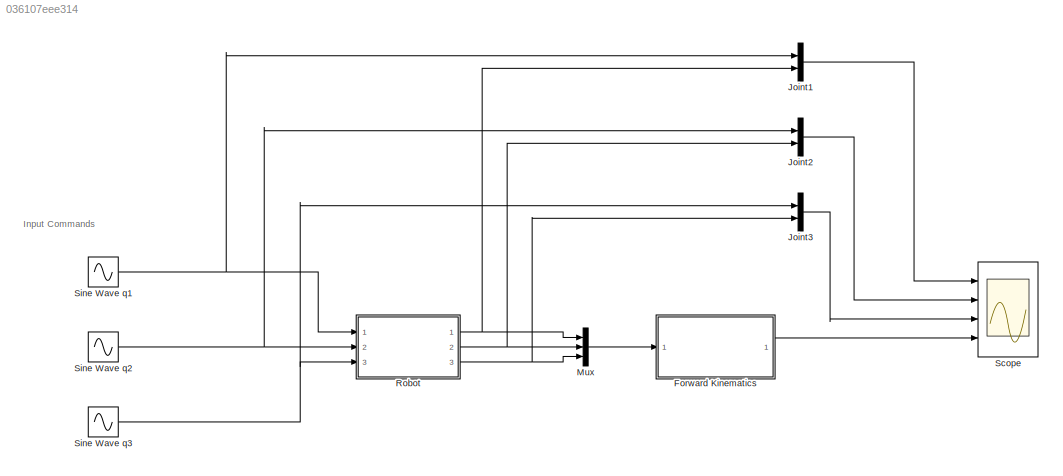
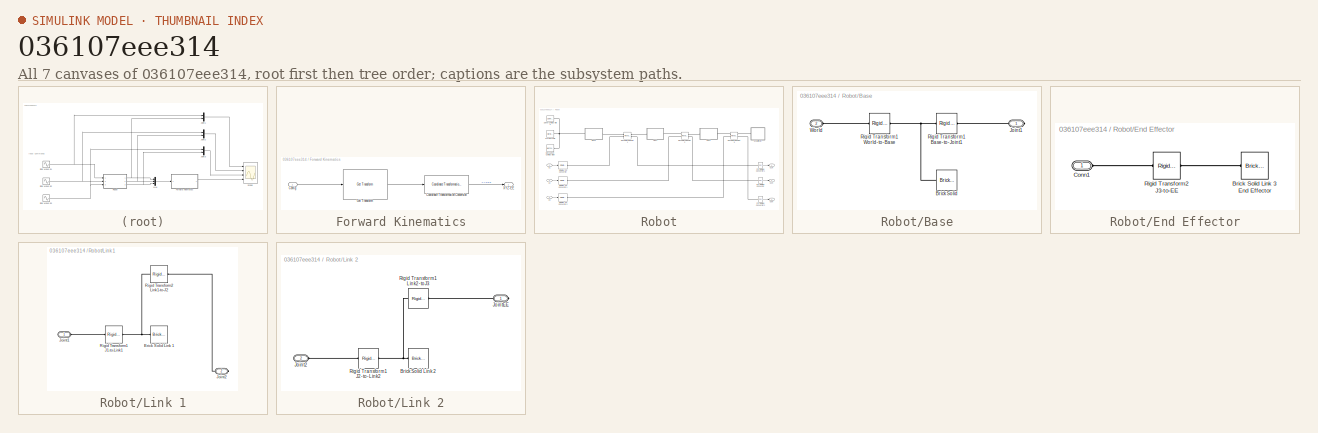
[diagram: thumbnail index - all 7 canvases of the model, root first then tree order]
MODEL slx_036107eee314
KIND model
CONFIG AbsTol = auto
CONFIG EnableMultiTasking = off
CONFIG FixedStep = auto
CONFIG MaxStep = auto
CONFIG MinStep = auto
CONFIG RelTol = 1e-3
CONFIG SampleTimeConstraint = Unconstrained
CONFIG SolverName = VariableStepAuto
CONFIG StartTime = 0.0
CONFIG StopTime = 10.0
BLOCK [SubSystem] Forward Kinematics
  Ports = [1, 1]
  RequestExecContextInheritance = off
BLOCK [Inport] Forward Kinematics/Config
BLOCK [Reference] Forward Kinematics/Coordinate Transformation Conversion  REF=robotcorelib/Coordinate Transformation Conversion
  Ports = [1, 1]
  SourceBlock = robotcorelib/Coordinate Transformation Conversion
  SourceProductBaseCode = RO,NV,RR,UV
  SourceType = robotics.slcore.internal.block.CoordinateTransformationConversion
BLOCK [Reference] Forward Kinematics/Get Transform  REF=robotmaniplib/Get Transform
  Ports = [1, 1]
  SourceBlock = robotmaniplib/Get Transform
  SourceProductBaseCode = RO
  SourceType = Get Transform
BLOCK [Outport] Forward Kinematics/XYZ-EE
BLOCK [Mux] Joint1
  DisplayOption = bar
  Inputs = 2
  Ports = [2, 1]
BLOCK [Mux] Joint2
  DisplayOption = bar
  Inputs = 2
  Ports = [2, 1]
BLOCK [Mux] Joint3
  DisplayOption = bar
  Inputs = 2
  Ports = [2, 1]
BLOCK [Mux] Mux
  DisplayOption = bar
  Inputs = 3
  Ports = [3, 1]
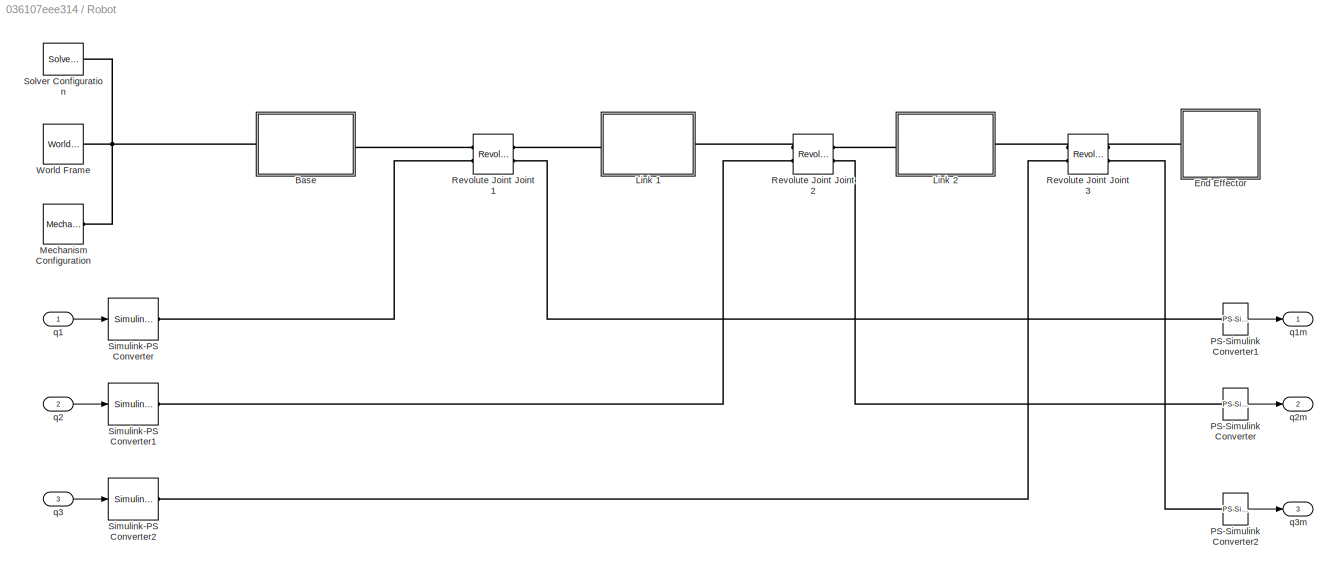
BLOCK [SubSystem] Robot
  Ports = [3, 3]
  RequestExecContextInheritance = off
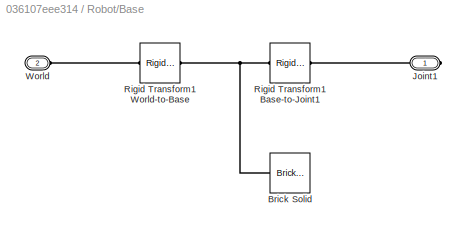
BLOCK [SubSystem] Robot/Base
  Ports = [0, 0, 0, 0, 0, 1, 1]
  RequestExecContextInheritance = off
BLOCK [Reference] Robot/Base/Brick Solid  REF=sm_lib/Body Elements/Brick Solid
  Ports = [0, 0, 0, 0, 0, 0, 1]
  SourceBlock = sm_lib/Body Elements/Brick Solid
  SourceProductBaseCode = MS
  SourceType = Brick Solid
BLOCK [PMIOPort] Robot/Base/Joint1
  Side = Right
BLOCK [Reference] Robot/Base/Rigid Transform1 Base-to-Joint1  REF=sm_lib/Frames and
Transforms/Rigid
Transform
  Ports = [0, 0, 0, 0, 0, 1, 1]
  SourceBlock = sm_lib/Frames and\nTransforms/Rigid\nTransform
  SourceProductBaseCode = MS
  SourceType = Rigid\nTransform
BLOCK [Reference] Robot/Base/Rigid Transform1 World-to-Base  REF=sm_lib/Frames and
Transforms/Rigid
Transform
  Ports = [0, 0, 0, 0, 0, 1, 1]
  SourceBlock = sm_lib/Frames and\nTransforms/Rigid\nTransform
  SourceProductBaseCode = MS
  SourceType = Rigid\nTransform
BLOCK [PMIOPort] Robot/Base/World
  Port = 2
  Side = Left
BLOCK [SubSystem] Robot/End Effector
  Ports = [0, 0, 0, 0, 0, 1]
  RequestExecContextInheritance = off
BLOCK [Reference] Robot/End Effector/Brick Solid Link 3 End Effector  REF=sm_lib/Body Elements/Brick Solid
  Ports = [0, 0, 0, 0, 0, 0, 1]
  SourceBlock = sm_lib/Body Elements/Brick Solid
  SourceProductBaseCode = MS
  SourceType = Brick Solid
BLOCK [PMIOPort] Robot/End Effector/Conn1
  Side = Left
BLOCK [Reference] Robot/End Effector/Rigid Transform2 J3-to-EE  REF=sm_lib/Frames and
Transforms/Rigid
Transform
  Ports = [0, 0, 0, 0, 0, 1, 1]
  SourceBlock = sm_lib/Frames and\nTransforms/Rigid\nTransform
  SourceProductBaseCode = MS
  SourceType = Rigid\nTransform
BLOCK [SubSystem] Robot/Link 1
  Ports = [0, 0, 0, 0, 0, 1, 1]
  RequestExecContextInheritance = off
BLOCK [Reference] Robot/Link 1/Brick Solid Link 1  REF=sm_lib/Body Elements/Brick Solid
  Ports = [0, 0, 0, 0, 0, 0, 1]
  SourceBlock = sm_lib/Body Elements/Brick Solid
  SourceProductBaseCode = MS
  SourceType = Brick Solid
BLOCK [PMIOPort] Robot/Link 1/Joint1
  Side = Left
BLOCK [PMIOPort] Robot/Link 1/Joint2
  Port = 2
  Side = Right
BLOCK [Reference] Robot/Link 1/Rigid Transform1 J1-to-Link1  REF=sm_lib/Frames and
Transforms/Rigid
Transform
  Ports = [0, 0, 0, 0, 0, 1, 1]
  SourceBlock = sm_lib/Frames and\nTransforms/Rigid\nTransform
  SourceProductBaseCode = MS
  SourceType = Rigid\nTransform
BLOCK [Reference] Robot/Link 1/Rigid Transform2 Link1-to-J2  REF=sm_lib/Frames and
Transforms/Rigid
Transform
  Ports = [0, 0, 0, 0, 0, 1, 1]
  SourceBlock = sm_lib/Frames and\nTransforms/Rigid\nTransform
  SourceProductBaseCode = MS
  SourceType = Rigid\nTransform
BLOCK [SubSystem] Robot/Link 2
  Ports = [0, 0, 0, 0, 0, 1, 1]
  RequestExecContextInheritance = off
BLOCK [Reference] Robot/Link 2/Brick Solid Link 2  REF=sm_lib/Body Elements/Brick Solid
  Ports = [0, 0, 0, 0, 0, 0, 1]
  SourceBlock = sm_lib/Body Elements/Brick Solid
  SourceProductBaseCode = MS
  SourceType = Brick Solid
BLOCK [PMIOPort] Robot/Link 2/Joint2
  Port = 2
  Side = Left
BLOCK [PMIOPort] Robot/Link 2/JointEE
  Side = Right
BLOCK [Reference] Robot/Link 2/Rigid Transform1 J2-to-Link2  REF=sm_lib/Frames and
Transforms/Rigid
Transform
  Ports = [0, 0, 0, 0, 0, 1, 1]
  SourceBlock = sm_lib/Frames and\nTransforms/Rigid\nTransform
  SourceProductBaseCode = MS
  SourceType = Rigid\nTransform
BLOCK [Reference] Robot/Link 2/Rigid Transform1 Link2-toJ3  REF=sm_lib/Frames and
Transforms/Rigid
Transform
  Ports = [0, 0, 0, 0, 0, 1, 1]
  SourceBlock = sm_lib/Frames and\nTransforms/Rigid\nTransform
  SourceProductBaseCode = MS
  SourceType = Rigid\nTransform
BLOCK [Reference] Robot/Mechanism Configuration  REF=sm_lib/Utilities/Mechanism
Configuration
  Ports = [0, 0, 0, 0, 0, 0, 1]
  SourceBlock = sm_lib/Utilities/Mechanism\nConfiguration
  SourceProductBaseCode = MS
  SourceType = Mechanism\nConfiguration
BLOCK [Reference] Robot/PS-Simulink Converter  REF=nesl_utility/PS-Simulink
Converter
  Ports = [0, 1, 0, 0, 0, 1]
  SourceBlock = nesl_utility/PS-Simulink\nConverter
  SourceProductBaseCode = SS,PW,VE
  SourceType = PS-Simulink\nConverter
BLOCK [Reference] Robot/PS-Simulink Converter1  REF=nesl_utility/PS-Simulink
Converter
  Ports = [0, 1, 0, 0, 0, 1]
  SourceBlock = nesl_utility/PS-Simulink\nConverter
  SourceProductBaseCode = SS,PW,VE
  SourceType = PS-Simulink\nConverter
BLOCK [Reference] Robot/PS-Simulink Converter2  REF=nesl_utility/PS-Simulink
Converter
  Ports = [0, 1, 0, 0, 0, 1]
  SourceBlock = nesl_utility/PS-Simulink\nConverter
  SourceProductBaseCode = SS,PW,VE
  SourceType = PS-Simulink\nConverter
BLOCK [Reference] Robot/Revolute Joint Joint 1  REF=sm_lib/Joints/Revolute Joint
  Ports = [0, 0, 0, 0, 0, 2, 2]
  SourceBlock = sm_lib/Joints/Revolute Joint
  SourceProductBaseCode = MS
  SourceType = Revolute Joint
BLOCK [Reference] Robot/Revolute Joint Joint 2  REF=sm_lib/Joints/Revolute Joint
  Ports = [0, 0, 0, 0, 0, 2, 2]
  SourceBlock = sm_lib/Joints/Revolute Joint
  SourceProductBaseCode = MS
  SourceType = Revolute Joint
BLOCK [Reference] Robot/Revolute Joint Joint 3  REF=sm_lib/Joints/Revolute Joint
  Ports = [0, 0, 0, 0, 0, 2, 2]
  SourceBlock = sm_lib/Joints/Revolute Joint
  SourceProductBaseCode = MS
  SourceType = Revolute Joint
BLOCK [Reference] Robot/Simulink-PS Converter  REF=nesl_utility/Simulink-PS
Converter
  Ports = [1, 0, 0, 0, 0, 0, 1]
  SourceBlock = nesl_utility/Simulink-PS\nConverter
  SourceProductBaseCode = SS,PW,VE
  SourceType = Simulink-PS\nConverter
BLOCK [Reference] Robot/Simulink-PS Converter1  REF=nesl_utility/Simulink-PS
Converter
  Ports = [1, 0, 0, 0, 0, 0, 1]
  SourceBlock = nesl_utility/Simulink-PS\nConverter
  SourceProductBaseCode = SS,PW,VE
  SourceType = Simulink-PS\nConverter
BLOCK [Reference] Robot/Simulink-PS Converter2  REF=nesl_utility/Simulink-PS
Converter
  Ports = [1, 0, 0, 0, 0, 0, 1]
  SourceBlock = nesl_utility/Simulink-PS\nConverter
  SourceProductBaseCode = SS,PW,VE
  SourceType = Simulink-PS\nConverter
BLOCK [Reference] Robot/Solver Configuration  REF=nesl_utility/Solver
Configuration
  Ports = [0, 0, 0, 0, 0, 0, 1]
  SourceBlock = nesl_utility/Solver\nConfiguration
  SourceProductBaseCode = SS,PW,VE
  SourceType = Solver\nConfiguration
BLOCK [Reference] Robot/World Frame  REF=sm_lib/Frames and
Transforms/World Frame
  Ports = [0, 0, 0, 0, 0, 0, 1]
  SourceBlock = sm_lib/Frames and\nTransforms/World Frame
  SourceProductBaseCode = MS
  SourceType = World Frame
BLOCK [Inport] Robot/q1
BLOCK [Outport] Robot/q1m
BLOCK [Inport] Robot/q2
  Port = 2
BLOCK [Outport] Robot/q2m
  Port = 2
BLOCK [Inport] Robot/q3
  Port = 3
BLOCK [Outport] Robot/q3m
  Port = 3
BLOCK [Scope] Scope
  Floating = off
  NumInputPorts = 4
  Ports = [4]
  ScopeSpecificationString = Simulink.scopes.TimeScopeBlockCfg('CurrentConfiguration', extmgr.ConfigurationSet(extmgr.Configuration('Core','General UI',true),extmgr.Configuration('Core','Source UI',true),extmgr.Configuration('Sources','WiredSimulink',true),extmgr.Configuration('Visuals','Time Domain',true,'SerializedDisplays',{struct('MinYLimReal','-1.625','MaxYLimReal','1.625','YLabelReal','','MinYLimMag','0.00000','MaxYLimM...<+3417ch>
BLOCK [Sin] Sine Wave q1
  Amplitude = 1.3
  Ports = [0, 1]
  SampleTime = 0
BLOCK [Sin] Sine Wave q2
  Amplitude = 2
  Frequency = 1.5
  Ports = [0, 1]
  SampleTime = 0
BLOCK [Sin] Sine Wave q3
  Amplitude = 2
  Frequency = 4.5
  Ports = [0, 1]
  SampleTime = 0
ANNOTATION (root): Input Commands
LINE Forward Kinematics/Config:1 -> Forward Kinematics/Get Transform:1
LINE Forward Kinematics/Coordinate Transformation Conversion:1 -> Forward Kinematics/XYZ-EE:1
LINE Forward Kinematics/Get Transform:1 -> Forward Kinematics/Coordinate Transformation Conversion:1
LINE Forward Kinematics:1 -> Scope:4
LINE Joint1:1 -> Scope:1
LINE Joint2:1 -> Scope:2
LINE Joint3:1 -> Scope:3
LINE Mux:1 -> Forward Kinematics:1
LINE Robot/PS-Simulink Converter1:1 -> Robot/q1m:1
LINE Robot/PS-Simulink Converter2:1 -> Robot/q3m:1
LINE Robot/PS-Simulink Converter:1 -> Robot/q2m:1
LINE Robot/q1:1 -> Robot/Simulink-PS Converter:1
LINE Robot/q2:1 -> Robot/Simulink-PS Converter1:1
LINE Robot/q3:1 -> Robot/Simulink-PS Converter2:1
NET Robot:1 -> Joint1:2, Mux:1
NET Robot:2 -> Joint2:2, Mux:2
NET Robot:3 -> Joint3:2, Mux:3
NET Sine Wave q1:1 -> Joint1:1, Robot:1
NET Sine Wave q2:1 -> Joint2:1, Robot:2
NET Sine Wave q3:1 -> Joint3:1, Robot:3
PNET net1: Robot/Base/Brick Solid:RConn1 -- Robot/Base/Rigid Transform1 Base-to-Joint1:LConn1 -- Robot/Base/Rigid Transform1 World-to-Base:RConn1
PLINE Robot/Base/Joint1:RConn1 -- Robot/Base/Rigid Transform1 Base-to-Joint1:RConn1
PLINE Robot/Base/Rigid Transform1 World-to-Base:LConn1 -- Robot/Base/World:RConn1
PNET net2: Robot/Base:LConn1 -- Robot/Mechanism Configuration:RConn1 -- Robot/Solver Configuration:RConn1 -- Robot/World Frame:RConn1
PLINE Robot/Base:RConn1 -- Robot/Revolute Joint Joint 1:LConn1
PLINE Robot/End Effector/Brick Solid Link 3 End Effector:RConn1 -- Robot/End Effector/Rigid Transform2 J3-to-EE:RConn1
PLINE Robot/End Effector/Conn1:RConn1 -- Robot/End Effector/Rigid Transform2 J3-to-EE:LConn1
PLINE Robot/End Effector:LConn1 -- Robot/Revolute Joint Joint 3:RConn1
PNET net3: Robot/Link 1/Brick Solid Link 1:RConn1 -- Robot/Link 1/Rigid Transform1 J1-to-Link1:RConn1 -- Robot/Link 1/Rigid Transform2 Link1-to-J2:LConn1
PLINE Robot/Link 1/Joint1:RConn1 -- Robot/Link 1/Rigid Transform1 J1-to-Link1:LConn1
PLINE Robot/Link 1/Joint2:RConn1 -- Robot/Link 1/Rigid Transform2 Link1-to-J2:RConn1
PLINE Robot/Link 1:LConn1 -- Robot/Revolute Joint Joint 1:RConn1
PLINE Robot/Link 1:RConn1 -- Robot/Revolute Joint Joint 2:LConn1
PNET net4: Robot/Link 2/Brick Solid Link 2:RConn1 -- Robot/Link 2/Rigid Transform1 J2-to-Link2:RConn1 -- Robot/Link 2/Rigid Transform1 Link2-toJ3:LConn1
PLINE Robot/Link 2/Joint2:RConn1 -- Robot/Link 2/Rigid Transform1 J2-to-Link2:LConn1
PLINE Robot/Link 2/JointEE:RConn1 -- Robot/Link 2/Rigid Transform1 Link2-toJ3:RConn1
PLINE Robot/Link 2:LConn1 -- Robot/Revolute Joint Joint 2:RConn1
PLINE Robot/Link 2:RConn1 -- Robot/Revolute Joint Joint 3:LConn1
PLINE Robot/PS-Simulink Converter1:LConn1 -- Robot/Revolute Joint Joint 1:RConn2
PLINE Robot/PS-Simulink Converter2:LConn1 -- Robot/Revolute Joint Joint 3:RConn2
PLINE Robot/PS-Simulink Converter:LConn1 -- Robot/Revolute Joint Joint 2:RConn2
PLINE Robot/Revolute Joint Joint 1:LConn2 -- Robot/Simulink-PS Converter:RConn1
PLINE Robot/Revolute Joint Joint 2:LConn2 -- Robot/Simulink-PS Converter1:RConn1
PLINE Robot/Revolute Joint Joint 3:LConn2 -- Robot/Simulink-PS Converter2:RConn1
note: NET lines group one-source signal fan-out (src -> all destinations, sorted); 1:1 wires keep LINE; PNET lines group multi-terminal physical nets as a canonical sorted terminal list (undirected conserving connections); 2-terminal nets keep the pairwise PLINE form
